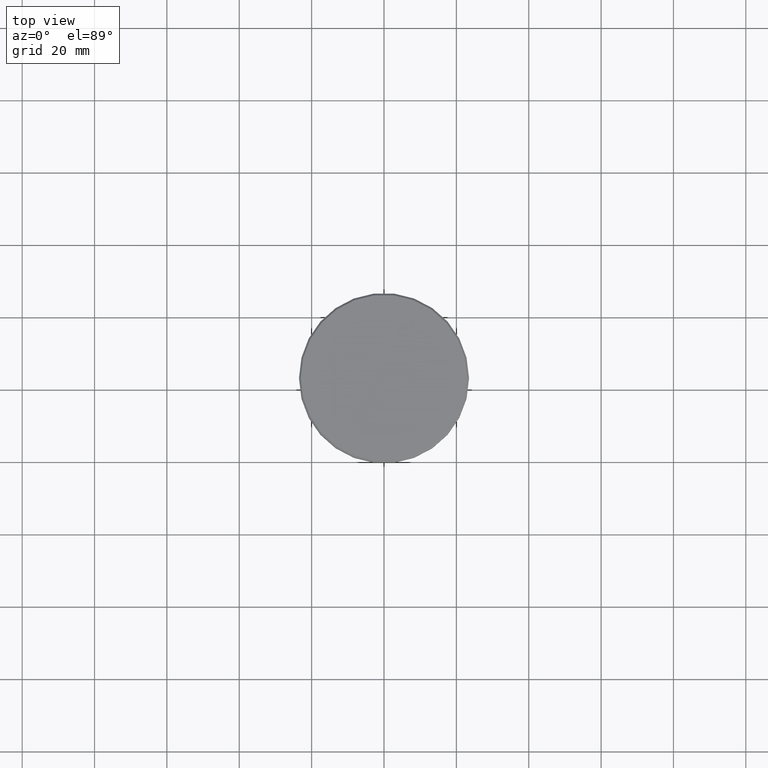
[diagram: clean part render]
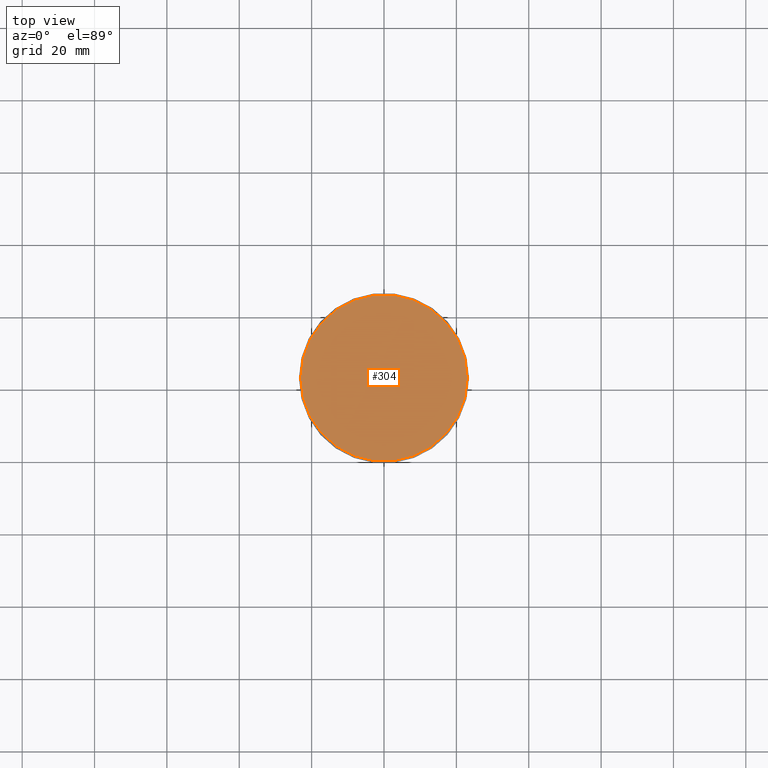
[diagram: same view with one face highlighted and labeled with its STEP entity id]
A machine part, top view. The second image highlights one B-rep face of the part: STEP entity #304.
In plain terms, the highlighted planar face has unit normal (0, -0, 1).
Its self-contained STEP definition (entity closure, byte-faithful):
#5 = DIRECTION ( 'NONE',  ( -0.000000000000000000, -0.000000000000000000, 1.000000000000000000 ) ) ;
#24 = DIRECTION ( 'NONE',  ( 0.000000000000000000, -0.000000000000000000, 1.000000000000000000 ) ) ;
#77 = EDGE_CURVE ( 'NONE', #114, #1159, #427, .T. ) ;
#114 = VERTEX_POINT ( 'NONE', #994 ) ;
#122 = CARTESIAN_POINT ( 'NONE',  ( 0.000000000000000000, 0.000000000000000000, 0.000000000000000000 ) ) ;
#176 = AXIS2_PLACEMENT_3D ( 'NONE', #513, #321, #901 ) ;
#189 = DIRECTION ( 'NONE',  ( 1.000000000000000000, 0.000000000000000000, 0.000000000000000000 ) ) ;
#209 = PLANE ( 'NONE',  #871 ) ;
#304 = ADVANCED_FACE ( 'NONE', ( #385 ), #209, .T. ) ;
#321 = DIRECTION ( 'NONE',  ( -0.000000000000000000, -0.000000000000000000, 1.000000000000000000 ) ) ;
#385 = FACE_OUTER_BOUND ( 'NONE', #470, .T. ) ;
#391 = ORIENTED_EDGE ( 'NONE', *, *, #77, .T. ) ;
#396 = EDGE_CURVE ( 'NONE', #1159, #114, #758, .T. ) ;
#427 = CIRCLE ( 'NONE', #176, 22.99999999999996803 ) ;
#470 = EDGE_LOOP ( 'NONE', ( #391, #1077 ) ) ;
#513 = CARTESIAN_POINT ( 'NONE',  ( 0.000000000000000000, 0.000000000000000000, 0.000000000000000000 ) ) ;
#558 = CARTESIAN_POINT ( 'NONE',  ( 22.99999999999996803, 2.847303808017594561E-15, 0.000000000000000000 ) ) ;
#565 = DIRECTION ( 'NONE',  ( 1.000000000000000000, 0.000000000000000000, 0.000000000000000000 ) ) ;
#656 = CARTESIAN_POINT ( 'NONE',  ( 0.000000000000000000, 0.000000000000000000, 0.000000000000000000 ) ) ;
#758 = CIRCLE ( 'NONE', #1017, 22.99999999999996803 ) ;
#871 = AXIS2_PLACEMENT_3D ( 'NONE', #656, #24, #189 ) ;
#901 = DIRECTION ( 'NONE',  ( 1.000000000000000000, 0.000000000000000000, 0.000000000000000000 ) ) ;
#994 = CARTESIAN_POINT ( 'NONE',  ( -22.99999999999996803, 0.000000000000000000, 0.000000000000000000 ) ) ;
#1017 = AXIS2_PLACEMENT_3D ( 'NONE', #122, #5, #565 ) ;
#1077 = ORIENTED_EDGE ( 'NONE', *, *, #396, .T. ) ;
#1159 = VERTEX_POINT ( 'NONE', #558 ) ;